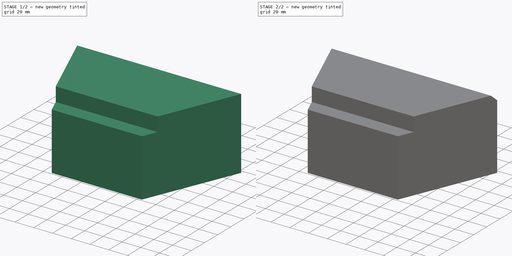
[diagram: build sequence overview — one tinted view per stage of 2, left to right]
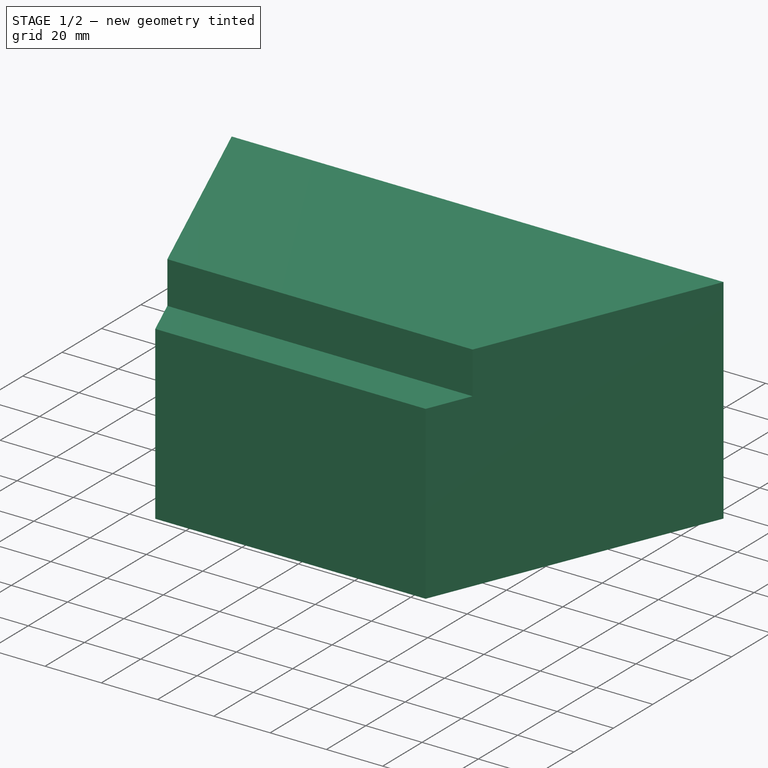
[diagram: stage 1 of 2 — iso view after this stage's code; geometry added in this stage tinted green]
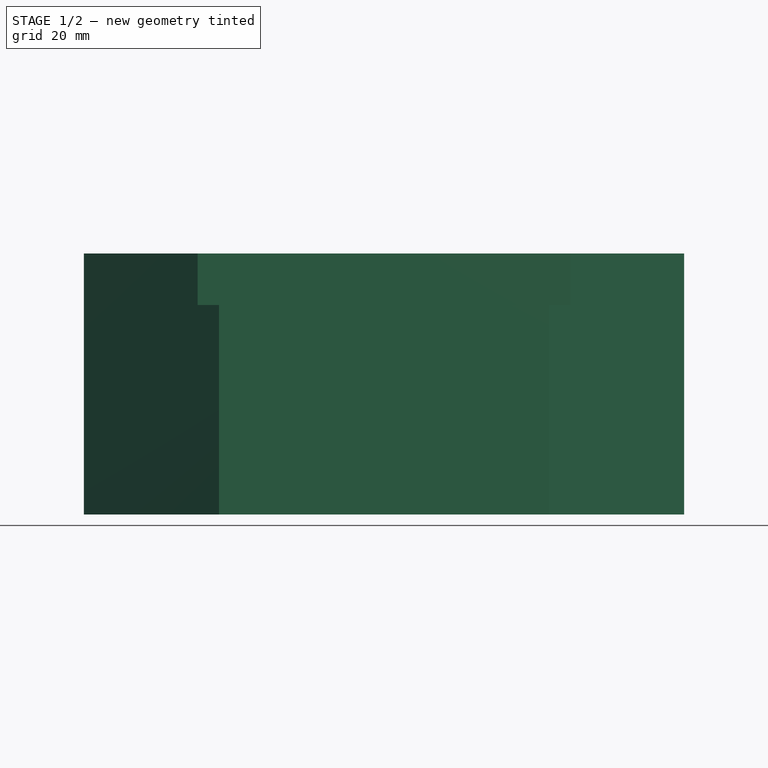
[diagram: stage 1 of 2 — front view after this stage's code; geometry added in this stage tinted green]
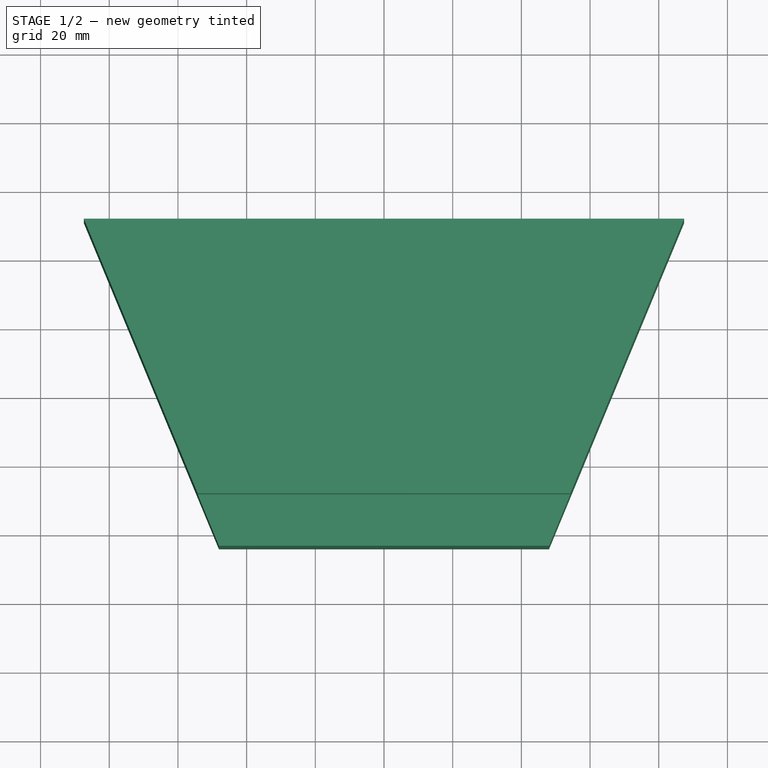
[diagram: stage 1 of 2 — top view after this stage's code; geometry added in this stage tinted green]
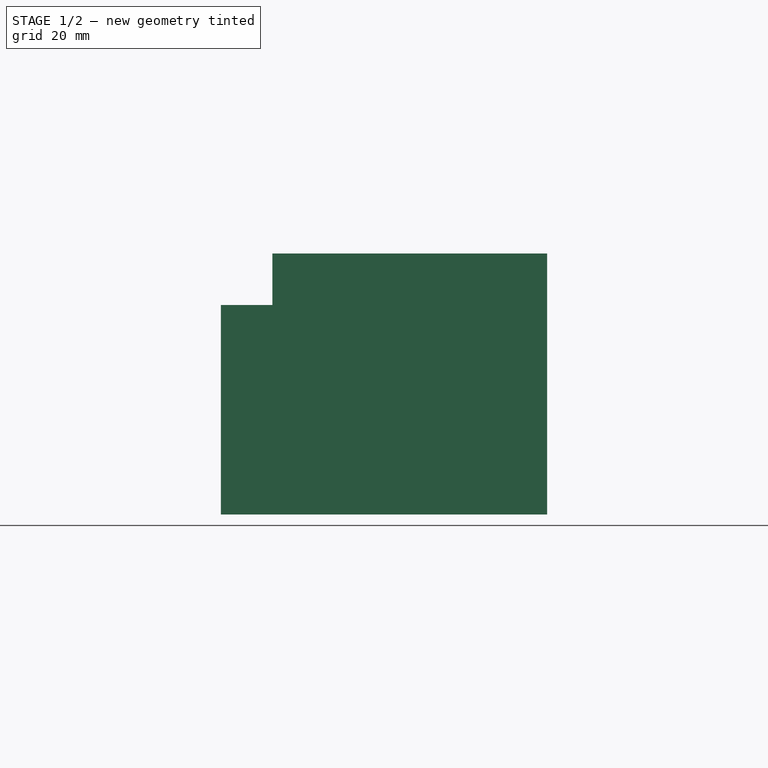
[diagram: stage 1 of 2 — right view after this stage's code; geometry added in this stage tinted green]
FCSTD DOCUMENT  (FreeCAD 1.0R39319 (Git))
Label: OCT-LIDBR-AA
License: Creative Commons Attribution 4.0
LicenseURL: https://creativecommons.org/licenses/by/4.0/
objects: Sketcher::SketchObject×3, PartDesign::Pocket×2, App::Link×1, Spreadsheet::Sheet×1, PartDesign::Plane×1, PartDesign::Pad×1, PartDesign::Chamfer×1, PartDesign::Line×1, PartDesign::Body×1
note: 21 computed .brp shape members not serialized (recipe doc carries the construction recipe); baked Part::Feature solids carry a one-line shape summary decoded from their .brp
EXTERNAL_REF file=../master.FCStd obj=Spreadsheet

FEATURE [App::Link] Link  label="dims"
  LinkedObject = -> <external ../master.FCStd>#Spreadsheet
FEATURE [Sketcher::SketchObject] Sketch
  ArcFitTolerance = 1e-06
  AttachmentSupport = -> [XY_Plane]
  FullyConstrained = false
  MakeInternals = false
  MapMode = 5
  expr: Constraints[25] = <<dims>>.iwFurnace
  expr: Constraints[53] = <<dims>>.owChamber
  expr: Constraints[69] = <<local>>.ChamberGap
  sketch-geometry (26):
    g0: LineSegment StartX=87.3991 StartY=211 StartZ=0 EndX=-87.3991 EndY=211 EndZ=0
    g1: LineSegment [constr] StartX=-87.3991 StartY=211 StartZ=0 EndX=-211 EndY=87.3991 EndZ=0
    g2: LineSegment [constr] StartX=-211 StartY=87.3991 StartZ=0 EndX=-211 EndY=-87.3991 EndZ=0
    g3: LineSegment [constr] StartX=-211 StartY=-87.3991 StartZ=0 EndX=-87.3991 EndY=-211 EndZ=0
    g4: LineSegment [constr] StartX=-87.3991 StartY=-211 StartZ=0 EndX=87.3991 EndY=-211 EndZ=0
    g5: LineSegment [constr] StartX=87.3991 StartY=-211 StartZ=0 EndX=211 EndY=-87.3991 EndZ=0
    g6: LineSegment [constr] StartX=211 StartY=-87.3991 StartZ=0 EndX=211 EndY=87.3991 EndZ=0
    g7: LineSegment [constr] StartX=211 StartY=87.3991 StartZ=0 EndX=87.3991 EndY=211 EndZ=0
    g8: Circle [constr] CenterX=0 CenterY=0 CenterZ=0 NormalX=0 NormalY=0 NormalZ=1 AngleXU=0 Radius=228.385
    g9: LineSegment [constr] StartX=87.5252 StartY=243.071 StartZ=0 EndX=297.467 EndY=247.999 EndZ=0
    g10: LineSegment [constr] StartX=294.792 StartY=361.968 StartZ=0 EndX=84.8499 EndY=357.039 EndZ=0
    g11: LineSegment [constr] StartX=84.8499 StartY=357.039 StartZ=0 EndX=87.5252 EndY=243.071 EndZ=0
    g12: GeomPoint [constr] X=191.159 Y=302.519 Z=0
    g13: LineSegment [constr] StartX=45.9777 StartY=111 StartZ=0 EndX=-45.9777 EndY=111 EndZ=0
    g14: LineSegment [constr] StartX=-45.9777 StartY=111 StartZ=0 EndX=-111 EndY=45.9777 EndZ=0
    g15: LineSegment [constr] StartX=-111 StartY=45.9777 StartZ=0 EndX=-111 EndY=-45.9777 EndZ=0
    g16: LineSegment [constr] StartX=-111 StartY=-45.9777 StartZ=0 EndX=-45.9777 EndY=-111 EndZ=0
    g17: LineSegment [constr] StartX=-45.9777 StartY=-111 StartZ=0 EndX=45.9777 EndY=-111 EndZ=0
    g18: LineSegment [constr] StartX=45.9777 StartY=-111 StartZ=0 EndX=111 EndY=-45.9777 EndZ=0
    g19: LineSegment [constr] StartX=111 StartY=-45.9777 StartZ=0 EndX=111 EndY=45.9777 EndZ=0
    g20: LineSegment [constr] StartX=111 StartY=45.9777 StartZ=0 EndX=45.9777 EndY=111 EndZ=0
    g21: Circle [constr] CenterX=0 CenterY=0 CenterZ=0 NormalX=0 NormalY=0 NormalZ=1 AngleXU=0 Radius=120.146
    g22: LineSegment [constr] StartX=294.792 StartY=361.968 StartZ=0 EndX=297.467 EndY=247.999 EndZ=0
    g23: LineSegment StartX=-87.3991 StartY=211 StartZ=0 EndX=-48.0488 EndY=116 EndZ=0
    g24: LineSegment StartX=-48.0488 StartY=116 StartZ=0 EndX=48.0488 EndY=116 EndZ=0
    g25: LineSegment StartX=48.0488 StartY=116 StartZ=0 EndX=87.3991 EndY=211 EndZ=0
  constraints (58):
    c: Coincident(g0,g1)
    c: Coincident(g1,g2)
    c: Coincident(g2,g3)
    c: Coincident(g3,g4)
    c: Coincident(g4,g5)
    c: Coincident(g5,g6)
    c: Coincident(g6,g7)
    c: Coincident(g7,g0)
    c: Equal(g0, g1-g7) x7
    c: PointOnObject(g0,g8)
    c: PointOnObject(g1,g8)
    c: PointOnObject(g2,g8)
    c: PointOnObject(g3,g8)
    c: PointOnObject(g4,g8)
    c: PointOnObject(g5,g8)
    c: PointOnObject(g6,g8)
    c: PointOnObject(g7,g8)
    c: Coincident(g8,g-1)
    c: Horizontal(g0)
    c: DistanceY(g3,g0) = 422
    c: Coincident(g10,g11)
    c: Symmetric(g10,g9,g12)
    c: Coincident(g13,g14)
    c: Coincident(g14,g15)
    c: Coincident(g15,g16)
    c: Coincident(g16,g17)
    c: Coincident(g17,g18)
    c: Coincident(g18,g19)
    c: Coincident(g19,g20)
    c: Coincident(g20,g13)
    c: Equal(g13, g14-g20) x7
    c: PointOnObject(g13,g21)
    c: PointOnObject(g14,g21)
    c: PointOnObject(g15,g21)
    c: PointOnObject(g16,g21)
    c: PointOnObject(g17,g21)
    c: PointOnObject(g18,g21)
    c: PointOnObject(g19,g21)
    c: PointOnObject(g20,g21)
    c: Coincident(g21,g8)
    c: Horizontal(g13)
    c: DistanceY(g16,g13) = 222
    c: Perpendicular(g11,g10)
    c: Perpendicular(g9,g11)
    c: Distance(g10,g10) = 210
    c: Coincident(g11,g9)
    c: Coincident(g22,g10)
    c: Coincident(g22,g9)
    c: Perpendicular(g9,g22)
    c: Distance(g22,g22) = 114
    c: Coincident(g23,g0)
    c: Coincident(g24,g23)
    c: Coincident(g25,g24)
    c: Coincident(g25,g0)
    c: Equal(g25,g23)
    c: PointOnObject(g13,g23)
    c: Horizontal(g24)
    c: DistanceY(g13,g23) = 5
FEATURE [Sketcher::SketchObject] Sketch001
  ArcFitTolerance = 1e-06
  AttachmentSupport = -> [XY_Plane]
  FullyConstrained = true
  MakeInternals = false
  MapMode = 5
  expr: Constraints[25] = <<dims>>.iwFurnace
  expr: Constraints[51] = <<dims>>.owChamber
  expr: Constraints[62] = <<local>>.RockwoolRadius
  expr: Constraints[63] = <<local>>.ChamberGap
  sketch-geometry (23):
    g0: LineSegment [constr] StartX=-87.3991 StartY=211 StartZ=0 EndX=-211 EndY=87.3991 EndZ=0
    g1: LineSegment [constr] StartX=-211 StartY=87.3991 StartZ=0 EndX=-211 EndY=-87.3991 EndZ=0
    g2: LineSegment [constr] StartX=-211 StartY=-87.3991 StartZ=0 EndX=-87.3991 EndY=-211 EndZ=0
    g3: LineSegment [constr] StartX=-87.3991 StartY=-211 StartZ=0 EndX=87.3991 EndY=-211 EndZ=0
    g4: LineSegment [constr] StartX=87.3991 StartY=-211 StartZ=0 EndX=211 EndY=-87.3991 EndZ=0
    g5: LineSegment [constr] StartX=211 StartY=-87.3991 StartZ=0 EndX=211 EndY=87.3991 EndZ=0
    g6: LineSegment [constr] StartX=211 StartY=87.3991 StartZ=0 EndX=87.3991 EndY=211 EndZ=0
    g7: LineSegment [constr] StartX=87.3991 StartY=211 StartZ=0 EndX=-87.3991 EndY=211 EndZ=0
    g8: Circle [constr] CenterX=0 CenterY=0 CenterZ=0 NormalX=0 NormalY=0 NormalZ=1 AngleXU=0 Radius=228.385
    g9: LineSegment [constr] StartX=-45.9777 StartY=111 StartZ=0 EndX=-111 EndY=45.9777 EndZ=0
    g10: LineSegment [constr] StartX=-111 StartY=45.9777 StartZ=0 EndX=-111 EndY=-45.9777 EndZ=0
    g11: LineSegment [constr] StartX=-111 StartY=-45.9777 StartZ=0 EndX=-45.9777 EndY=-111 EndZ=0
    g12: LineSegment [constr] StartX=-45.9777 StartY=-111 StartZ=0 EndX=45.9777 EndY=-111 EndZ=0
    g13: LineSegment [constr] StartX=45.9777 StartY=-111 StartZ=0 EndX=111 EndY=-45.9777 EndZ=0
    g14: LineSegment [constr] StartX=111 StartY=-45.9777 StartZ=0 EndX=111 EndY=45.9777 EndZ=0
    g15: LineSegment [constr] StartX=111 StartY=45.9777 StartZ=0 EndX=45.9777 EndY=111 EndZ=0
    g16: LineSegment [constr] StartX=45.9777 StartY=111 StartZ=0 EndX=-45.9777 EndY=111 EndZ=0
    g17: Circle [constr] CenterX=0 CenterY=0 CenterZ=0 NormalX=0 NormalY=0 NormalZ=1 AngleXU=0 Radius=120.146
    g18: LineSegment StartX=-54.262 StartY=131 StartZ=0 EndX=-48.0488 EndY=116 EndZ=0
    g19: LineSegment StartX=-48.0488 StartY=116 StartZ=0 EndX=48.0488 EndY=116 EndZ=0
    g20: LineSegment StartX=48.0488 StartY=116 StartZ=0 EndX=54.262 EndY=131 EndZ=0
    g21: LineSegment StartX=54.262 StartY=131 StartZ=0 EndX=-54.262 EndY=131 EndZ=0
    g22: LineSegment [constr] StartX=-87.3991 StartY=211 StartZ=0 EndX=-45.9777 EndY=111 EndZ=0
  constraints (53):
    c: Coincident(g0,g1)
    c: Coincident(g1,g2)
    c: Coincident(g2,g3)
    c: Coincident(g3,g4)
    c: Coincident(g4,g5)
    c: Coincident(g5,g6)
    c: Coincident(g6,g7)
    c: Coincident(g7,g0)
    c: Equal(g0, g1-g7) x7
    c: PointOnObject(g0,g8)
    c: PointOnObject(g1,g8)
    c: PointOnObject(g2,g8)
    c: PointOnObject(g3,g8)
    c: PointOnObject(g4,g8)
    c: PointOnObject(g5,g8)
    c: PointOnObject(g6,g8)
    c: PointOnObject(g7,g8)
    c: Coincident(g-1,g8)
    c: Horizontal(g7)
    c: DistanceY(g2,g0) = 422
    c: Coincident(g9,g10)
    c: Coincident(g10,g11)
    c: Coincident(g11,g12)
    c: Coincident(g12,g13)
    c: Coincident(g13,g14)
    c: Coincident(g14,g15)
    c: Coincident(g15,g16)
    c: Coincident(g16,g9)
    c: Equal(g9, g10-g16) x7
    c: PointOnObject(g9,g17)
    c: PointOnObject(g10,g17)
    c: PointOnObject(g11,g17)
    c: PointOnObject(g12,g17)
    c: PointOnObject(g13,g17)
    c: PointOnObject(g14,g17)
    c: PointOnObject(g15,g17)
    c: PointOnObject(g16,g17)
    c: Coincident(g17,g8)
    c: Horizontal(g16)
    c: DistanceY(g11,g9) = 222
    c: Coincident(g18,g19)
    c: Coincident(g19,g20)
    c: Coincident(g20,g21)
    c: Coincident(g21,g18)
    c: Horizontal(g21)
    c: Equal(g18,g20)
    c: Coincident(g22,g0)
    c: Coincident(g22,g9)
    c: PointOnObject(g18,g22)
    c: PointOnObject(g18,g22)
    c: DistanceY(g18,g18) = 15
    c: DistanceY(g9,g18) = 5
    c: Symmetric(g19,g18,g-2)
FEATURE [Spreadsheet::Sheet] Spreadsheet  label="local"
  cells = A1='chamber gap; B1(ChamberGap)=5; A2='rockwool radius; B2(RockwoolRadius)=15; A3='rockwool depth; B3(RockwoolDepth)=15
FEATURE [PartDesign::Plane] DatumPlane  label="bottom plane"
  AttachmentOffset = pos=(0,0,76) rot=(0,0,1;0rad)
  AttachmentSupport = -> [XY_Plane]
  Length = 60
  MapMode = 5
  Placement = pos=(0,0,-76) rot=(0,1,0;3.14159rad)
  ResizeMode = 0
  Width = 60
FEATURE [PartDesign::Pad] Pad
  Direction = (0,0,1)
  Length = 76
  Length2 = 10
  Profile = -> Sketch
  ReferenceAxis = -> Sketch [N_Axis]
  Reversed = true
  Suppressed = false
  Type = 3
  UpToFace = -> DatumPlane
FEATURE [PartDesign::Pocket] Pocket  label="rockwool anchor"
  BaseFeature = -> Pad
  Direction = (0,0,-1)
  Length = 15
  Length2 = 5
  Profile = -> Sketch001
  ReferenceAxis = -> Sketch001 [N_Axis]
  Suppressed = false
  Type = 0
  expr: Length = <<local>>.RockwoolDepth
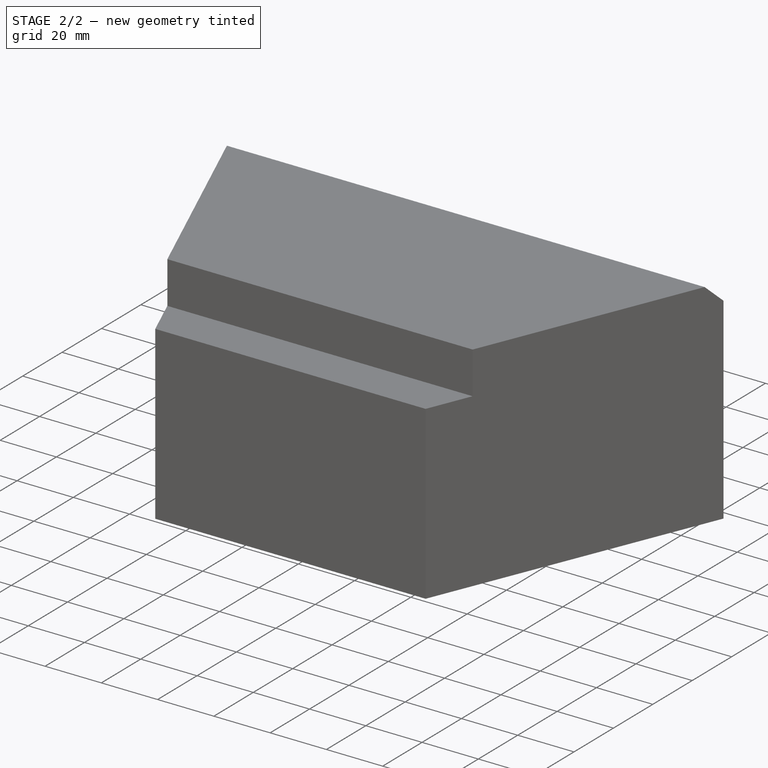
[diagram: stage 2 of 2 — iso view after this stage's code; geometry added in this stage tinted green]
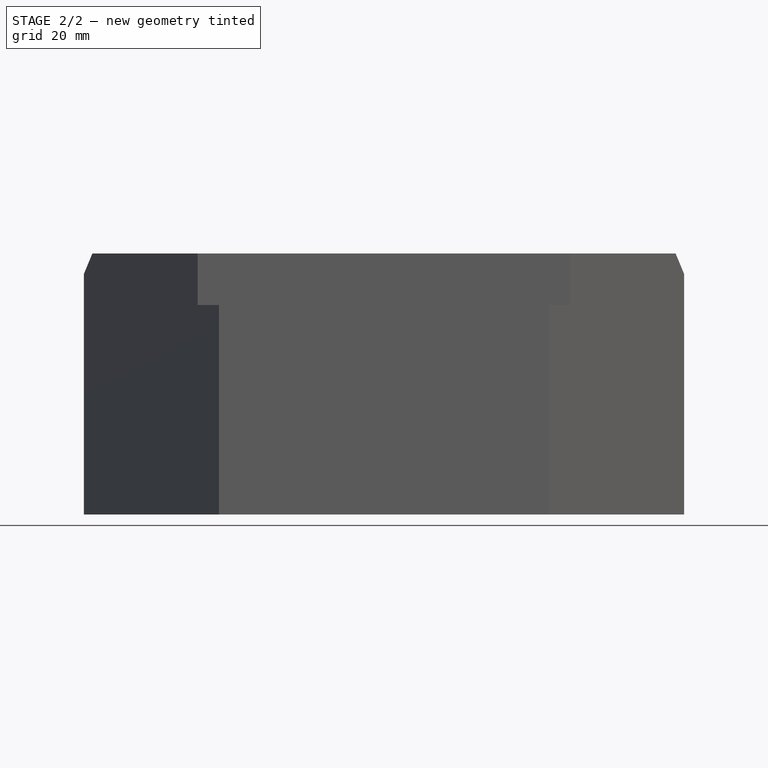
[diagram: stage 2 of 2 — front view after this stage's code; geometry added in this stage tinted green]
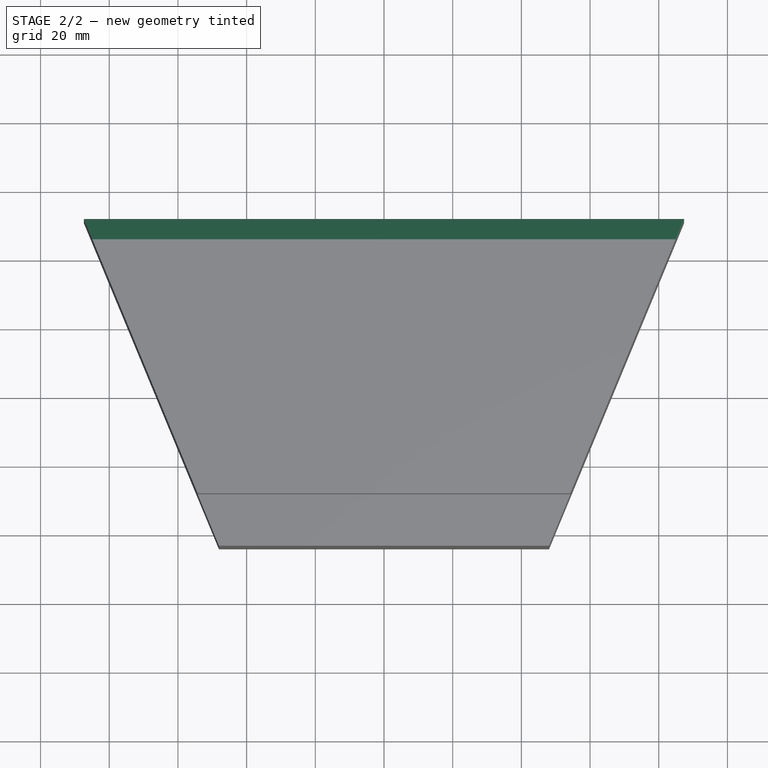
[diagram: stage 2 of 2 — top view after this stage's code; geometry added in this stage tinted green]
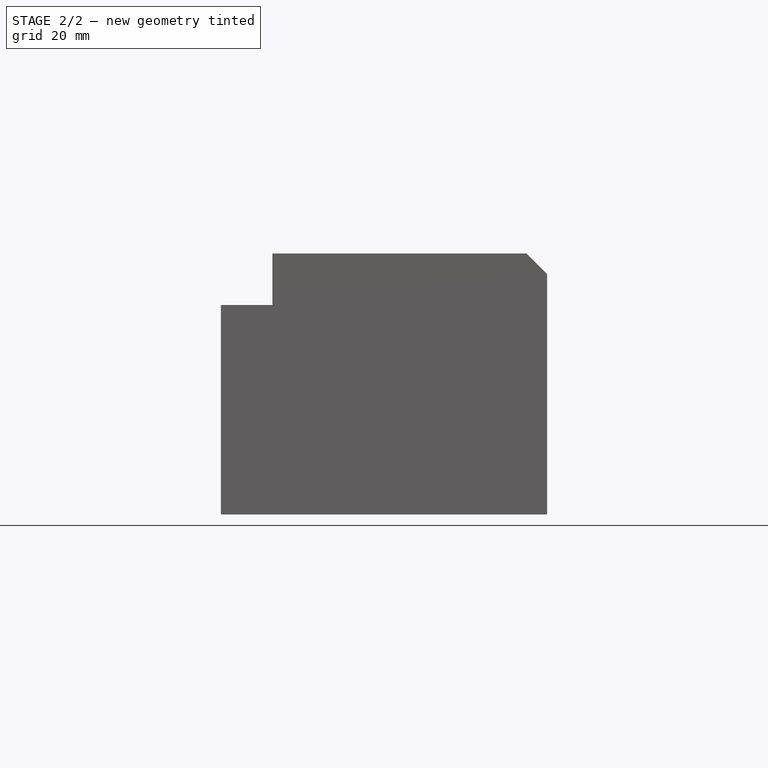
[diagram: stage 2 of 2 — right view after this stage's code; geometry added in this stage tinted green]
FEATURE [PartDesign::Chamfer] Chamfer  label="lid clearance chamfer"
  Angle = 45
  Base = -> Pocket [Edge1]
  BaseFeature = -> Pocket
  ChamferType = 0
  FlipDirection = false
  Size = 6
  Size2 = 1
  SupportTransform = false
  Suppressed = false
  UseAllEdges = false
FEATURE [Sketcher::SketchObject] Sketch002
  ArcFitTolerance = 1e-06
  AttachmentSupport = -> [DatumPlane]
  FullyConstrained = true
  MakeInternals = false
  MapMode = 5
  Placement = pos=(0,0,-76) rot=(0,1,0;3.14159rad)
  expr: Constraints[4] = <<dims>>.iwFurnace / 2 - 9
  sketch-geometry (10):
    g0: Circle [constr] CenterX=-30 CenterY=202 CenterZ=0 NormalX=0 NormalY=0 NormalZ=1 AngleXU=0 Radius=3.5
    g1: Circle [constr] CenterX=30 CenterY=202 CenterZ=0 NormalX=0 NormalY=0 NormalZ=1 AngleXU=0 Radius=3.5
    g2: ArcOfCircle CenterX=-30 CenterY=202 CenterZ=0 NormalX=0 NormalY=0 NormalZ=1 AngleXU=0 Radius=7 StartAngle=3.14159 EndAngle=6.28319
    g3: ArcOfCircle CenterX=30 CenterY=202 CenterZ=0 NormalX=0 NormalY=0 NormalZ=1 AngleXU=0 Radius=7 StartAngle=3.14159 EndAngle=6.28319
    g4: LineSegment StartX=-37 StartY=202 StartZ=0 EndX=-37 EndY=212 EndZ=0
    g5: LineSegment StartX=-37 StartY=212 StartZ=0 EndX=-23 EndY=212 EndZ=0
    g6: LineSegment StartX=-23 StartY=212 StartZ=0 EndX=-23 EndY=202 EndZ=0
    g7: LineSegment StartX=23 StartY=202 StartZ=0 EndX=23 EndY=212 EndZ=0
    g8: LineSegment StartX=23 StartY=212 StartZ=0 EndX=37 EndY=212 EndZ=0
    g9: LineSegment StartX=37 StartY=212 StartZ=0 EndX=37 EndY=202 EndZ=0
  constraints (25):
    c: Equal(g0,g1)
    c: Diameter(g0) = 7
    c: DistanceX(g0,g1) = 60
    c: Symmetric(g1,g0,g-2)
    c: DistanceY(g-1,g0) = 202
    c: Coincident(g2,g0)
    c: Coincident(g3,g1)
    c: Equal(g3,g2)
    c: Vertical(g4)
    c: Coincident(g4,g5)
    c: Horizontal(g5)
    c: Coincident(g5,g6)
    c: Vertical(g6)
    c: Tangent(g3,g7) = 1.5708
    c: Coincident(g7,g8)
    c: Horizontal(g8)
    c: Coincident(g8,g9)
    c: Vertical(g9)
    c: Vertical(g7)
    c: Equal(g6,g7)
    c: Radius(g2) = 7
    c: DistanceY(g6,g6) = 10
    c: Tangent(g6,g2) = 1.5708
    c: Tangent(g4,g2) = 1.5708
    c: Tangent(g9,g3) = 1.5708
FEATURE [PartDesign::Pocket] Pocket001  label="panel bolt clearance"
  BaseFeature = -> Chamfer
  Direction = (0,0,1)
  Length = 10
  Length2 = 5
  Profile = -> Sketch002
  ReferenceAxis = -> Sketch002 [N_Axis]
  Refine = true
  Suppressed = false
  Type = 0
FEATURE [PartDesign::Line] DatumLine  label="centre line"
  AttacherType = Attacher::AttachEngineLine
  AttachmentSupport = -> [Z_Axis]
  Length = 20
  MapMode = 29
  ResizeMode = 0
FEATURE [PartDesign::Body] Body  label="base brick"
  AllowCompound = false
  Group = -> [DatumPlane,Sketch,Pad,Sketch001,Pocket,Chamfer,Sketch002,Pocket001,DatumLine]
  Origin = -> Origin
  Tip = -> Pocket001
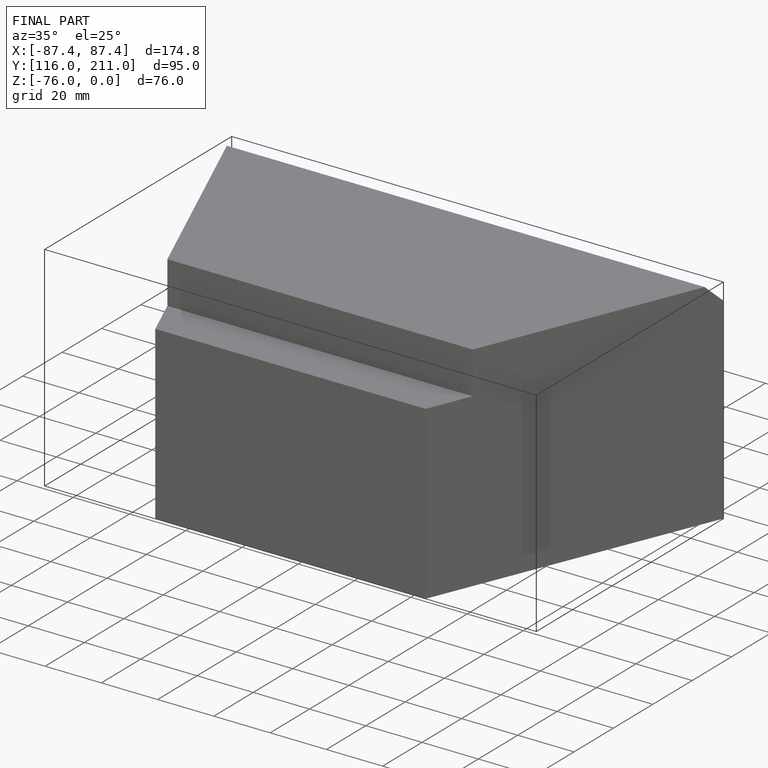
[diagram: finished part — iso view with bounding-box wireframe]
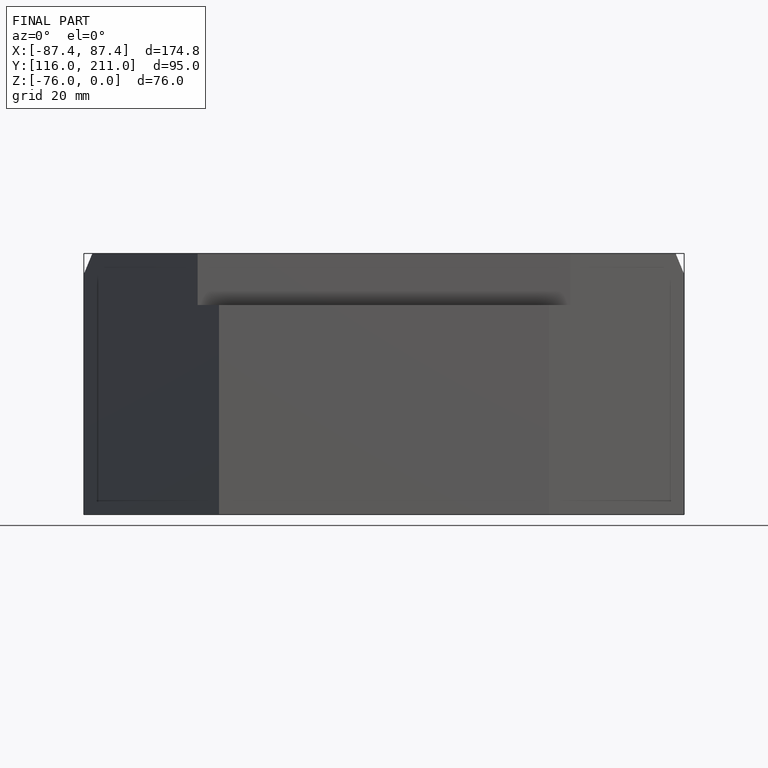
[diagram: finished part — front view with bounding-box wireframe]
